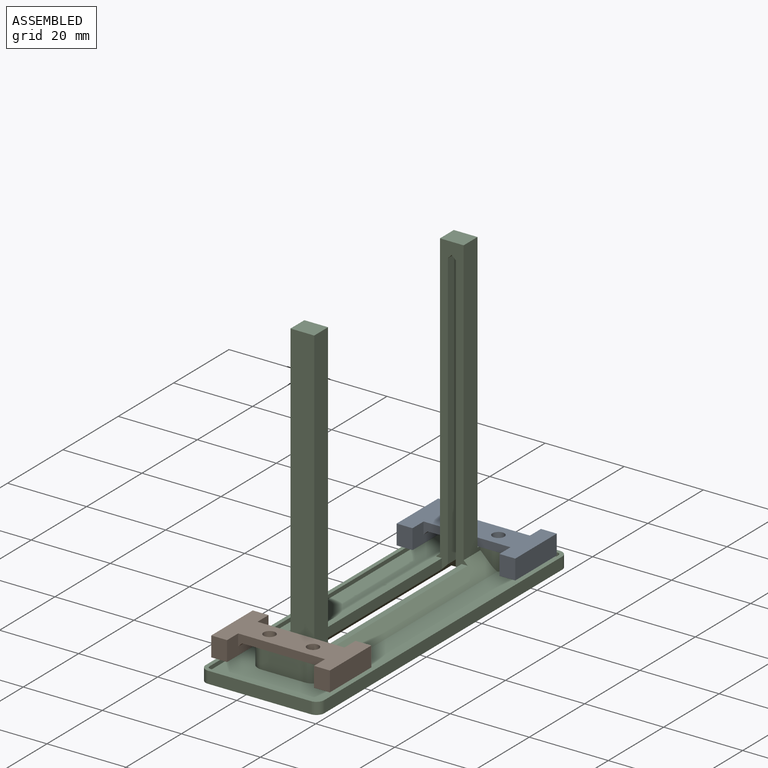
[diagram: assembled view]
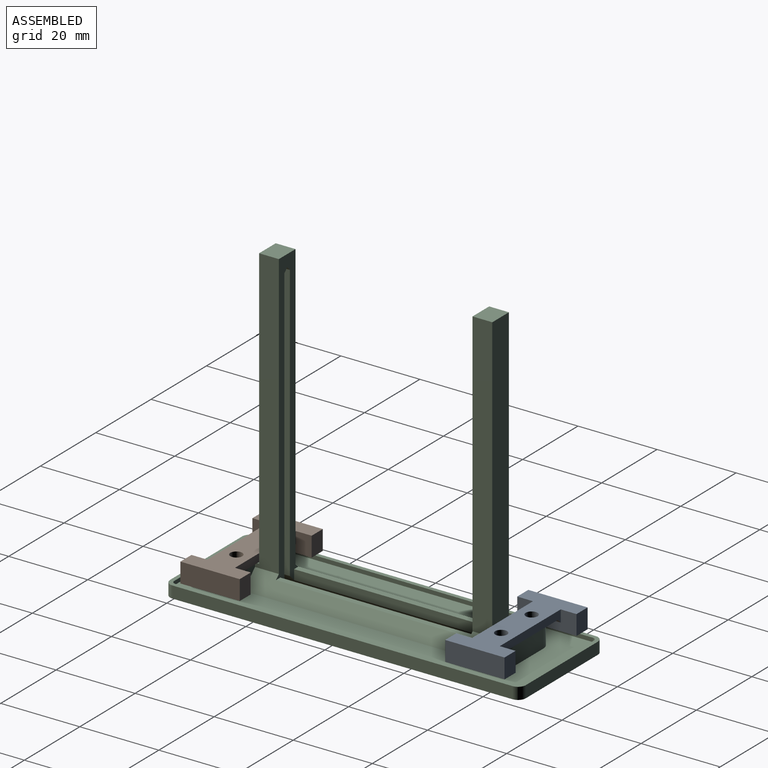
[diagram: assembled view, second angle]
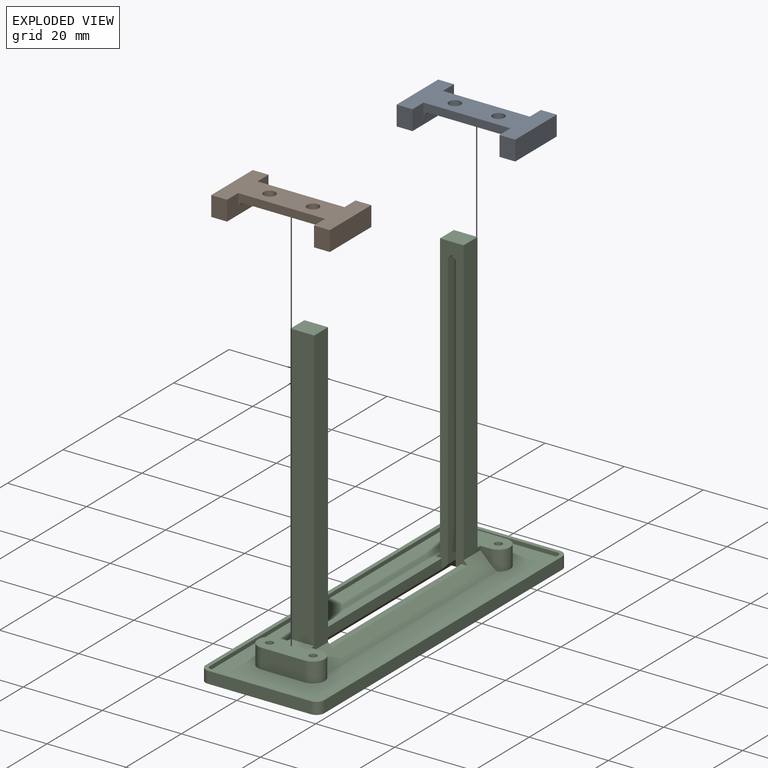
[diagram: exploded view]
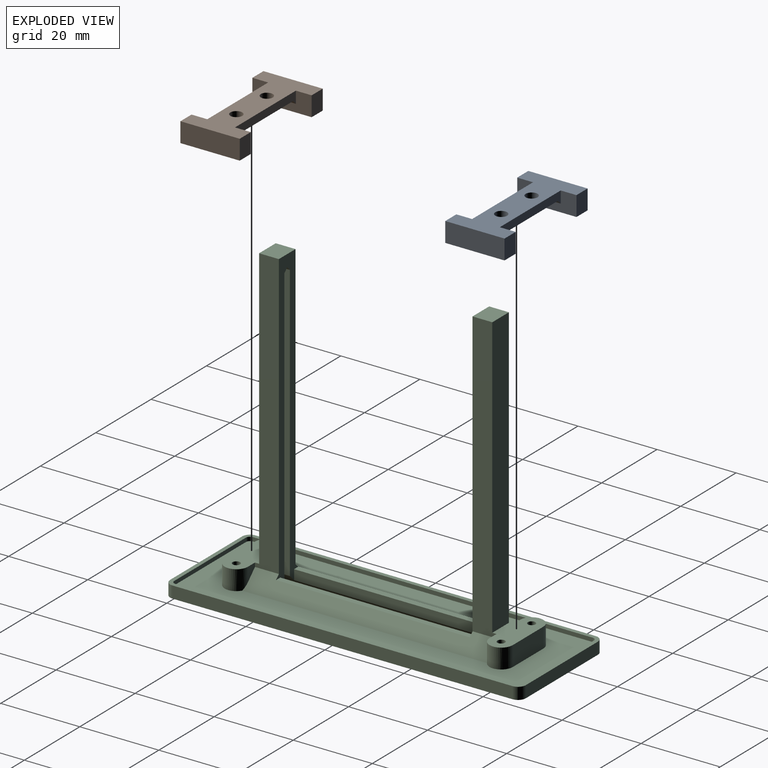
[diagram: exploded view, second angle]
ASSEMBLY  parts=3 mates=2
PART A: 18 faces, bbox 30x15x5 mm
  f0: plane 20x7mm, normal (0,0,1), area 125.9mm2, adj f2,f7,f10,f12,f16,f17
  f1: plane 15x5mm, normal (1,0,0), area 54mm2, adj f2,f7,f8,f11,f13,f14,f17
  f2: plane 22x3mm, normal (0,-1,0), area 45mm2, adj f0,f1,f3,f13,f16,f17
  f3: plane 15x5mm, normal (-1,0,0), area 54mm2, adj f2,f4,f6,f7,f13,f15,f16
  f4: plane 5x4mm, normal (0,-1,0), area 20mm2, adj f3,f5,f13,f15
  f5: plane 15x5mm, normal (1,0,0), area 75mm2, adj f4,f6,f13,f15
  f6: plane 5x4mm, normal (0,1,0), area 20mm2, adj f3,f5,f13,f15
  f7: plane 22x3mm, normal (0,1,0), area 45mm2, adj f0,f1,f3,f13,f16,f17
  f8: plane 5x4mm, normal (0,1,0), area 20mm2, adj f1,f9,f13,f14
  f9: plane 15x5mm, normal (-1,0,0), area 75mm2, adj f8,f11,f13,f14
  f10: cylinder r=1.5mm len=3mm, axis (0,0,-1), area 18.8mm2, adj f0,f13
  f11: plane 5x4mm, normal (0,-1,0), area 20mm2, adj f1,f9,f13,f14
  f12: cylinder r=1.5mm len=3mm, axis (0,0,-1), area 18.8mm2, adj f0,f13
  f13: plane 30x15mm, normal (0,0,-1), area 259.9mm2, adj f1,f2,f3,f4,f5,f6,f7,f8
  f14: plane 15x4mm, normal (0,0,1), area 60mm2, adj f1,f8,f9,f11
  f15: plane 15x4mm, normal (0,0,1), area 60mm2, adj f3,f4,f5,f6
  f16: plane 7x1mm, normal (-0.71,0,0.71), area 9.9mm2, adj f0,f2,f3,f7
  f17: plane 7x1mm, normal (0.71,0,0.71), area 9.9mm2, adj f0,f1,f2,f7
PART B: same geometry as A
PART C: 69 faces, bbox 30x90x78 mm
  f0: plane 70x3mm, normal (1,0,0), area 210mm2, adj f50,f55,f59,f65
  f1: plane 70x3mm, normal (-1,0,0), area 210mm2, adj f2,f50,f55,f66
  f2: plane 63x4mm, normal (-0.71,0,-0.71), area 229.8mm2, adj f1,f5,f51,f53,f55,f58,f60,f67
  f3: plane 72x6.05mm, normal (1,0,0), area 361mm2, adj f26,f39,f45,f53,f57,f62
  f4: plane 72x6.05mm, normal (-1,0,0), area 361mm2, adj f24,f30,f35,f55,f56,f61
  f5: plane 90x30mm, normal (0,0,-1), area 2066.6mm2, adj f2,f7,f8,f9,f10,f12,f13,f14
  f6: plane 88x28mm, normal (0,0,1), area 1422.5mm2, adj f16,f17,f18,f19,f20,f21,f22,f23
  f7: plane 26x3mm, normal (0,1,0), area 78mm2, adj f5,f11,f12,f15
  f8: plane 86x3mm, normal (-1,0,0), area 258mm2, adj f5,f11,f12,f13
  f9: plane 26x3mm, normal (0,-1,0), area 78mm2, adj f5,f11,f13,f14
  f10: plane 86x3mm, normal (1,0,0), area 258mm2, adj f5,f11,f14,f15
  f11: plane 90x30mm, normal (0,0,1), area 233.4mm2, adj f7,f8,f9,f10,f12,f13,f14,f15
  f12: cylinder r=2mm len=3mm, axis (0,0,1), area 9.4mm2, adj f5,f7,f8,f11
  f13: cylinder r=2mm len=3mm, axis (0,0,-1), area 9.4mm2, adj f5,f8,f9,f11
  f14: cylinder r=2mm len=3mm, axis (0,0,1), area 9.4mm2, adj f5,f9,f10,f11
  f15: cylinder r=2mm len=3mm, axis (0,0,-1), area 9.4mm2, adj f5,f7,f10,f11
  f16: cylinder r=1mm len=1mm, axis (0,0,1), area 1.6mm2, adj f6,f11,f17,f23
  f17: plane 26x1mm, normal (0,1,0), area 26mm2, adj f6,f11,f16,f18
  f18: cylinder r=1mm len=1mm, axis (0,0,1), area 1.6mm2, adj f6,f11,f17,f19
  f19: plane 86x1mm, normal (-1,0,0), area 86mm2, adj f6,f11,f18,f20
  f20: cylinder r=1mm len=1mm, axis (0,0,1), area 1.6mm2, adj f6,f11,f19,f21
  f21: plane 26x1mm, normal (0,-1,0), area 26mm2, adj f6,f11,f20,f22
  f22: cylinder r=1mm len=1mm, axis (0,0,1), area 1.6mm2, adj f6,f11,f21,f23
  f23: plane 86x1mm, normal (1,0,0), area 86mm2, adj f6,f11,f16,f22
  f24: plane 71x6mm, normal (0,1,0), area 426mm2, adj f4,f27,f35,f61
  f25: plane 72x6.05mm, normal (-1,0,0), area 361.1mm2, adj f26,f40,f45,f53,f56,f62
  f26: plane 71x6mm, normal (0,-1,0), area 426mm2, adj f3,f25,f45,f62
  f27: plane 72x6.05mm, normal (1,0,0), area 361mm2, adj f24,f31,f35,f55,f57,f61
  f28: plane 11x5mm, normal (0,1,0), area 55mm2, adj f6,f29,f33,f35
  f29: cylinder r=2.95mm len=5.9mm, axis (0,0,-1), area 45.2mm2, adj f6,f28,f30,f35,f56
  f30: plane 3.5x2.5mm, normal (0,-1,0), area 5.6mm2, adj f4,f29,f35,f56
  f31: plane 3.5x2.5mm, normal (0,-1,0), area 5.6mm2, adj f27,f33,f35,f57
  f32: cylinder r=0.95mm len=5mm, axis (0,0,-1), area 29.8mm2, adj f35,f37
  f33: cylinder r=2.95mm len=5.9mm, axis (0,0,-1), area 45.2mm2, adj f6,f28,f31,f35,f57
  f34: cylinder r=0.95mm len=5mm, axis (0,0,-1), area 29.8mm2, adj f35,f36
  f35: plane 16.9x6.95mm, normal (0,0,1), area 92.9mm2, adj f4,f24,f27,f28,f29,f30,f31,f32
  f36: plane 1.9x1.9mm, normal (0,0,1), area 2.8mm2, adj f34
  f37: plane 1.9x1.9mm, normal (0,0,1), area 2.8mm2, adj f32
  f38: cylinder r=2.95mm len=5.9mm, axis (0,0,-1), area 45.2mm2, adj f6,f39,f43,f45,f57
  f39: plane 3.5x2.5mm, normal (0,1,0), area 5.6mm2, adj f3,f38,f45,f57
  f40: plane 3.5x2.5mm, normal (0,1,0), area 5.6mm2, adj f25,f41,f45,f56
  f41: cylinder r=2.95mm len=5.9mm, axis (0,0,-1), area 45.2mm2, adj f6,f40,f43,f45,f56
  f42: cylinder r=0.95mm len=5mm, axis (0,0,-1), area 29.8mm2, adj f45,f46
  f43: plane 11x5mm, normal (0,-1,0), area 55mm2, adj f6,f38,f41,f45
  f44: cylinder r=0.95mm len=5mm, axis (0,0,-1), area 29.8mm2, adj f45,f47
  f45: plane 16.9x6.95mm, normal (0,0,1), area 92.9mm2, adj f3,f25,f26,f38,f39,f40,f41,f42
  f46: plane 1.9x1.9mm, normal (0,0,1), area 2.8mm2, adj f42
  f47: plane 1.9x1.9mm, normal (0,0,1), area 2.8mm2, adj f44
  f48: plane 71x2mm, normal (0,1,0), area 141mm2, adj f49,f51,f58,f63,f64
  f49: plane 70x3mm, normal (1,0,0), area 210mm2, adj f48,f53,f59,f63
  f50: plane 71x2mm, normal (0,-1,0), area 141mm2, adj f0,f1,f60,f65,f66
  f51: plane 70x3mm, normal (-1,0,0), area 210mm2, adj f2,f48,f53,f64
  f52: plane 49x1.5mm, normal (0,0,1), area 73.5mm2, adj f53,f55,f57,f67
  f53: plane 75.5x8mm, normal (0,1,0), area 305.3mm2, adj f2,f3,f25,f49,f51,f52,f54,f56
  f54: plane 49x1.5mm, normal (0,0,1), area 73.5mm2, adj f53,f55,f56,f68
  f55: plane 75.5x8mm, normal (0,-1,0), area 305.3mm2, adj f0,f1,f2,f4,f27,f52,f54,f56
  f56: plane 61.92x4mm, normal (-0.71,0,0.71), area 276.9mm2, adj f4,f6,f25,f29,f30,f40,f41,f53
  f57: plane 61.92x4mm, normal (0.71,0,0.71), area 276.9mm2, adj f3,f6,f27,f31,f33,f38,f39,f52
  f58: plane 10x4mm, normal (0,0.71,-0.71), area 33.9mm2, adj f2,f5,f48,f59
  f59: plane 63x4mm, normal (0.71,0,-0.71), area 229.8mm2, adj f0,f5,f49,f53,f55,f58,f60,f68
  f60: plane 10x4mm, normal (0,-0.71,-0.71), area 33.9mm2, adj f2,f5,f50,f59
  f61: plane 6x5mm, normal (0,0,1), area 30mm2, adj f4,f24,f27,f55
  f62: plane 6x5mm, normal (0,0,1), area 30mm2, adj f3,f25,f26,f53
  f63: plane 3x1mm, normal (0.71,0,-0.71), area 4.2mm2, adj f48,f49,f53,f64
  f64: plane 3x1mm, normal (-0.71,0,-0.71), area 4.2mm2, adj f48,f51,f53,f63
  f65: plane 3x1mm, normal (0.71,0,-0.71), area 4.2mm2, adj f0,f50,f55,f66
  f66: plane 3x1mm, normal (-0.71,0,-0.71), area 4.2mm2, adj f1,f50,f55,f65
  f67: plane 49x2.5mm, normal (-1,0,0), area 122.5mm2, adj f2,f52,f53,f55
  f68: plane 49x2.5mm, normal (1,0,0), area 122.5mm2, adj f53,f54,f55,f59
PLACE A rot(axis=(0,1,0),180deg) t=(-34.24,38.49,7.15)mm
PLACE B rot(axis=(1,0,0),180deg) t=(-34.24,-28.51,7.15)mm
PLACE C t=(-34.24,4.99,-1.85)mm
MATE fastened B.f12 <-> C.f41  axis (0,0,-1) through (-39.74,-28.51,5.15)mm
MATE fastened A.f12 <-> C.f33  axis (0,0,-1) through (-28.74,38.49,5.15)mm
